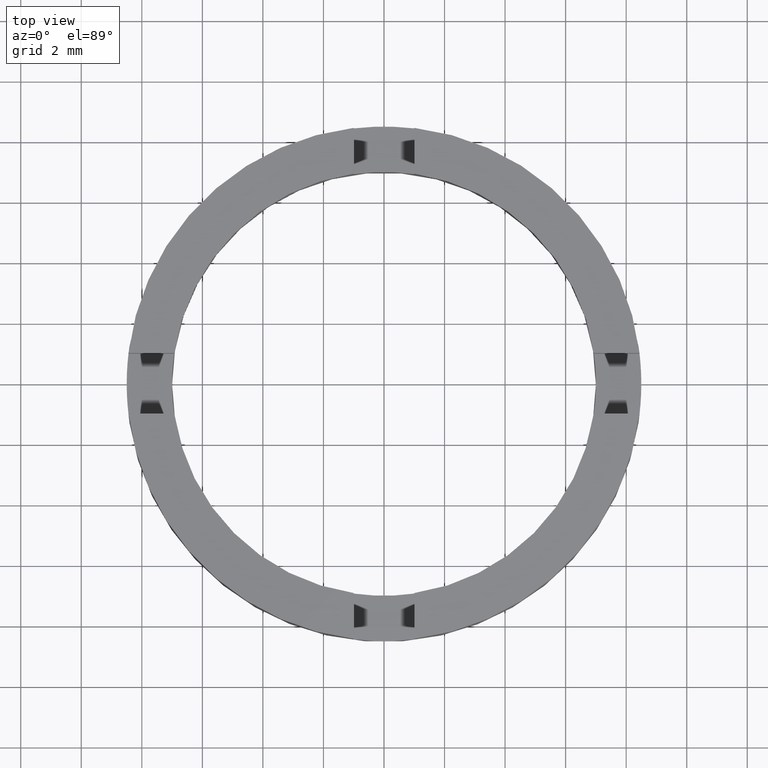
[diagram: clean part render]
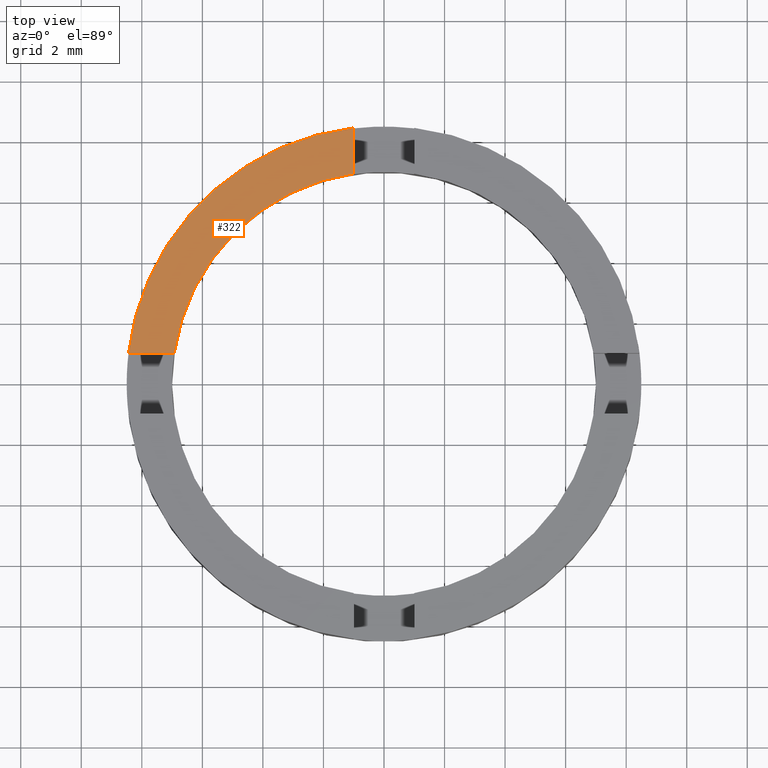
[diagram: same view with one face highlighted and labeled with its STEP entity id]
A machine part, top view. The second image highlights one B-rep face of the part: STEP entity #322.
In plain terms, the highlighted planar face has unit normal (0, 0, 1).
Its self-contained STEP definition (entity closure, byte-faithful):
#40 = FACE_OUTER_BOUND ( 'NONE', #779, .T. ) ;
#48 = CIRCLE ( 'NONE', #627, 8.500000000000000000 ) ;
#56 = LINE ( 'NONE', #383, #308 ) ;
#78 = DIRECTION ( 'NONE',  ( 0.000000000000000000, 0.000000000000000000, 1.000000000000000000 ) ) ;
#84 = DIRECTION ( 'NONE',  ( 0.000000000000000000, 1.000000000000000000, -0.000000000000000000 ) ) ;
#87 = PLANE ( 'NONE',  #291 ) ;
#135 = VERTEX_POINT ( 'NONE', #616 ) ;
#138 = EDGE_CURVE ( 'NONE', #659, #489, #48, .T. ) ;
#149 = ORIENTED_EDGE ( 'NONE', *, *, #138, .T. ) ;
#171 = CARTESIAN_POINT ( 'NONE',  ( -6.928203230275506108, 1.000000000000024869, 2.500000000000000000 ) ) ;
#191 = EDGE_CURVE ( 'NONE', #135, #234, #586, .T. ) ;
#234 = VERTEX_POINT ( 'NONE', #171 ) ;
#242 = EDGE_CURVE ( 'NONE', #135, #659, #56, .T. ) ;
#245 = ORIENTED_EDGE ( 'NONE', *, *, #242, .T. ) ;
#291 = AXIS2_PLACEMENT_3D ( 'NONE', #648, #657, #689 ) ;
#308 = VECTOR ( 'NONE', #84, 1000.000000000000000 ) ;
#321 = LINE ( 'NONE', #584, #562 ) ;
#322 = ADVANCED_FACE ( 'NONE', ( #40 ), #87, .T. ) ;
#345 = DIRECTION ( 'NONE',  ( 1.000000000000000000, -3.750063984832214919E-15, 0.000000000000000000 ) ) ;
#354 = EDGE_CURVE ( 'NONE', #489, #234, #321, .T. ) ;
#383 = CARTESIAN_POINT ( 'NONE',  ( -0.9999999999999986677, 0.000000000000000000, 2.500000000000000000 ) ) ;
#433 = CARTESIAN_POINT ( 'NONE',  ( -8.440971508067063311, 1.000000000000030642, 2.500000000000000000 ) ) ;
#486 = DIRECTION ( 'NONE',  ( 1.000000000000000000, 0.000000000000000000, 0.000000000000000000 ) ) ;
#489 = VERTEX_POINT ( 'NONE', #433 ) ;
#562 = VECTOR ( 'NONE', #345, 1000.000000000000000 ) ;
#584 = CARTESIAN_POINT ( 'NONE',  ( 3.750063984832210975E-15, 0.9999999999999988898, 2.500000000000000000 ) ) ;
#586 = CIRCLE ( 'NONE', #609, 7.000000000000000000 ) ;
#609 = AXIS2_PLACEMENT_3D ( 'NONE', #681, #731, #486 ) ;
#616 = CARTESIAN_POINT ( 'NONE',  ( -0.9999999999999986677, 6.928203230275509661, 2.500000000000000000 ) ) ;
#622 = CARTESIAN_POINT ( 'NONE',  ( -0.9999999999999986677, 8.440971508067066864, 2.500000000000000000 ) ) ;
#627 = AXIS2_PLACEMENT_3D ( 'NONE', #651, #78, #640 ) ;
#640 = DIRECTION ( 'NONE',  ( 1.000000000000000000, 0.000000000000000000, 0.000000000000000000 ) ) ;
#648 = CARTESIAN_POINT ( 'NONE',  ( 0.000000000000000000, 0.000000000000000000, 2.500000000000000000 ) ) ;
#651 = CARTESIAN_POINT ( 'NONE',  ( 0.000000000000000000, 0.000000000000000000, 2.500000000000000000 ) ) ;
#657 = DIRECTION ( 'NONE',  ( 0.000000000000000000, 0.000000000000000000, 1.000000000000000000 ) ) ;
#659 = VERTEX_POINT ( 'NONE', #622 ) ;
#681 = CARTESIAN_POINT ( 'NONE',  ( 0.000000000000000000, 0.000000000000000000, 2.500000000000000000 ) ) ;
#689 = DIRECTION ( 'NONE',  ( 1.000000000000000000, 0.000000000000000000, -0.000000000000000000 ) ) ;
#700 = ORIENTED_EDGE ( 'NONE', *, *, #354, .T. ) ;
#731 = DIRECTION ( 'NONE',  ( 0.000000000000000000, 0.000000000000000000, 1.000000000000000000 ) ) ;
#753 = ORIENTED_EDGE ( 'NONE', *, *, #191, .F. ) ;
#779 = EDGE_LOOP ( 'NONE', ( #753, #245, #149, #700 ) ) ;